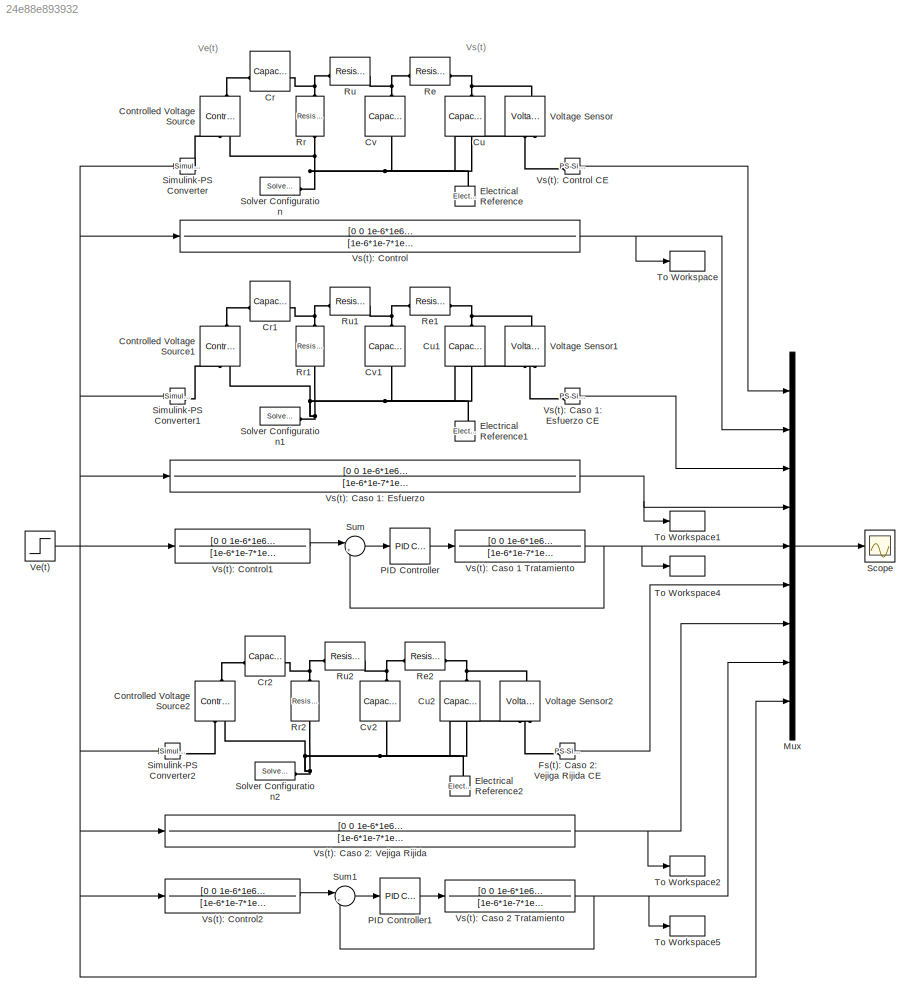
MODEL slx_24e88e893932
KIND model
CONFIG AbsTol = auto
CONFIG EnableMultiTasking = off
CONFIG FixedStep = auto
CONFIG MaxStep = 1e-3
CONFIG MinStep = auto
CONFIG RelTol = 1e-6
CONFIG SampleTimeConstraint = Unconstrained
CONFIG SolverName = ode23tb
CONFIG StartTime = 0.0
CONFIG StopTime = 10.0
BLOCK [Reference] Controlled Voltage Source  REF=fl_lib/Electrical/Electrical Sources/Controlled Voltage
Source
  NameLocation = right
  SourceBlock = fl_lib/Electrical/Electrical Sources/Controlled Voltage\nSource
  SourceType = Controlled Voltage\nSource
BLOCK [Reference] Controlled Voltage Source1  REF=fl_lib/Electrical/Electrical Sources/Controlled Voltage
Source
  NameLocation = right
  SourceBlock = fl_lib/Electrical/Electrical Sources/Controlled Voltage\nSource
  SourceType = Controlled Voltage\nSource
BLOCK [Reference] Controlled Voltage Source2  REF=fl_lib/Electrical/Electrical Sources/Controlled Voltage
Source
  NameLocation = right
  SourceBlock = fl_lib/Electrical/Electrical Sources/Controlled Voltage\nSource
  SourceType = Controlled Voltage\nSource
BLOCK [Reference] Cr  REF=fl_lib/Electrical/Electrical Elements/Capacitor
  NameLocation = top
  SourceBlock = fl_lib/Electrical/Electrical Elements/Capacitor
  SourceType = Capacitor
BLOCK [Reference] Cr1  REF=fl_lib/Electrical/Electrical Elements/Capacitor
  NameLocation = top
  SourceBlock = fl_lib/Electrical/Electrical Elements/Capacitor
  SourceType = Capacitor
BLOCK [Reference] Cr2  REF=fl_lib/Electrical/Electrical Elements/Capacitor
  NameLocation = top
  SourceBlock = fl_lib/Electrical/Electrical Elements/Capacitor
  SourceType = Capacitor
BLOCK [Reference] Cu  REF=fl_lib/Electrical/Electrical Elements/Capacitor
  NameLocation = left
  SourceBlock = fl_lib/Electrical/Electrical Elements/Capacitor
  SourceType = Capacitor
BLOCK [Reference] Cu1  REF=fl_lib/Electrical/Electrical Elements/Capacitor
  NameLocation = left
  SourceBlock = fl_lib/Electrical/Electrical Elements/Capacitor
  SourceType = Capacitor
BLOCK [Reference] Cu2  REF=fl_lib/Electrical/Electrical Elements/Capacitor
  NameLocation = left
  SourceBlock = fl_lib/Electrical/Electrical Elements/Capacitor
  SourceType = Capacitor
BLOCK [Reference] Cv  REF=fl_lib/Electrical/Electrical Elements/Capacitor
  NameLocation = left
  SourceBlock = fl_lib/Electrical/Electrical Elements/Capacitor
  SourceType = Capacitor
BLOCK [Reference] Cv1  REF=fl_lib/Electrical/Electrical Elements/Capacitor
  NameLocation = left
  SourceBlock = fl_lib/Electrical/Electrical Elements/Capacitor
  SourceType = Capacitor
BLOCK [Reference] Cv2  REF=fl_lib/Electrical/Electrical Elements/Capacitor
  NameLocation = left
  SourceBlock = fl_lib/Electrical/Electrical Elements/Capacitor
  SourceType = Capacitor
BLOCK [Reference] Electrical Reference  REF=fl_lib/Electrical/Electrical Elements/Electrical Reference
  NameLocation = right
  SourceBlock = fl_lib/Electrical/Electrical Elements/Electrical Reference
  SourceType = Electrical Reference
BLOCK [Reference] Electrical Reference1  REF=fl_lib/Electrical/Electrical Elements/Electrical Reference
  NameLocation = right
  SourceBlock = fl_lib/Electrical/Electrical Elements/Electrical Reference
  SourceType = Electrical Reference
BLOCK [Reference] Electrical Reference2  REF=fl_lib/Electrical/Electrical Elements/Electrical Reference
  NameLocation = right
  SourceBlock = fl_lib/Electrical/Electrical Elements/Electrical Reference
  SourceType = Electrical Reference
BLOCK [Reference] Fs(t): Caso 2: Vejiga Rijida CE  REF=nesl_utility/PS-Simulink
Converter
  SourceBlock = nesl_utility/PS-Simulink\nConverter
  SourceType = PS-Simulink\nConverter
BLOCK [Mux] Mux
  DisplayOption = bar
  Inputs = 9
BLOCK [Reference] PID Controller  REF=slpidlib/PID Controller
  LibrarySourceBlock = simulink/Continuous/PID Controller
  SourceBlock = slpidlib/PID Controller
  SourceType = PID 1dof
BLOCK [Reference] PID Controller1  REF=slpidlib/PID Controller
  LibrarySourceBlock = simulink/Continuous/PID Controller
  SourceBlock = slpidlib/PID Controller
  SourceType = PID 1dof
BLOCK [Reference] Re  REF=fl_lib/Electrical/Electrical Elements/Resistor
  NameLocation = top
  SourceBlock = fl_lib/Electrical/Electrical Elements/Resistor
  SourceType = Resistor
BLOCK [Reference] Re1  REF=fl_lib/Electrical/Electrical Elements/Resistor
  NameLocation = top
  SourceBlock = fl_lib/Electrical/Electrical Elements/Resistor
  SourceType = Resistor
BLOCK [Reference] Re2  REF=fl_lib/Electrical/Electrical Elements/Resistor
  NameLocation = top
  SourceBlock = fl_lib/Electrical/Electrical Elements/Resistor
  SourceType = Resistor
BLOCK [Reference] Rr  REF=fl_lib/Electrical/Electrical Elements/Resistor
  NameLocation = left
  SourceBlock = fl_lib/Electrical/Electrical Elements/Resistor
  SourceType = Resistor
BLOCK [Reference] Rr1  REF=fl_lib/Electrical/Electrical Elements/Resistor
  NameLocation = left
  SourceBlock = fl_lib/Electrical/Electrical Elements/Resistor
  SourceType = Resistor
BLOCK [Reference] Rr2  REF=fl_lib/Electrical/Electrical Elements/Resistor
  NameLocation = left
  SourceBlock = fl_lib/Electrical/Electrical Elements/Resistor
  SourceType = Resistor
BLOCK [Reference] Ru  REF=fl_lib/Electrical/Electrical Elements/Resistor
  NameLocation = top
  SourceBlock = fl_lib/Electrical/Electrical Elements/Resistor
  SourceType = Resistor
BLOCK [Reference] Ru1  REF=fl_lib/Electrical/Electrical Elements/Resistor
  NameLocation = top
  SourceBlock = fl_lib/Electrical/Electrical Elements/Resistor
  SourceType = Resistor
BLOCK [Reference] Ru2  REF=fl_lib/Electrical/Electrical Elements/Resistor
  NameLocation = top
  SourceBlock = fl_lib/Electrical/Electrical Elements/Resistor
  SourceType = Resistor
BLOCK [Scope] Scope
  Floating = off
  NumInputPorts = 1
  ScopeSpecificationString = Simulink.scopes.TimeScopeBlockCfg('CurrentConfiguration', extmgr.ConfigurationSet(extmgr.Configuration('Core','General UI',true,'FigureColor',[1 1 1]),extmgr.Configuration('Core','Source UI',true),extmgr.Configuration('Sources','WiredSimulink',true),extmgr.Configuration('Visuals','Time Domain',true,'SerializedDisplays',{struct('MinYLimReal','-0.14248','MaxYLimReal','1.12694','YLabelReal','','MinYL...<+2804ch>
BLOCK [Reference] Simulink-PS Converter  REF=nesl_utility/Simulink-PS
Converter
  SourceBlock = nesl_utility/Simulink-PS\nConverter
  SourceType = Simulink-PS\nConverter
BLOCK [Reference] Simulink-PS Converter1  REF=nesl_utility/Simulink-PS
Converter
  SourceBlock = nesl_utility/Simulink-PS\nConverter
  SourceType = Simulink-PS\nConverter
BLOCK [Reference] Simulink-PS Converter2  REF=nesl_utility/Simulink-PS
Converter
  SourceBlock = nesl_utility/Simulink-PS\nConverter
  SourceType = Simulink-PS\nConverter
BLOCK [Reference] Solver Configuration  REF=nesl_utility/Solver
Configuration
  SourceBlock = nesl_utility/Solver\nConfiguration
  SourceType = Solver\nConfiguration
BLOCK [Reference] Solver Configuration1  REF=nesl_utility/Solver
Configuration
  SourceBlock = nesl_utility/Solver\nConfiguration
  SourceType = Solver\nConfiguration
BLOCK [Reference] Solver Configuration2  REF=nesl_utility/Solver
Configuration
  SourceBlock = nesl_utility/Solver\nConfiguration
  SourceType = Solver\nConfiguration
BLOCK [Sum] Sum
  Inputs = |+-
BLOCK [Sum] Sum1
  Inputs = |+-
BLOCK [ToWorkspace] To Workspace
  FixptAsFi = on
  MaxDataPoints = inf
  SampleTime = -1
  VariableName = Vs1
BLOCK [ToWorkspace] To Workspace1
  FixptAsFi = on
  MaxDataPoints = inf
  SampleTime = -1
  VariableName = Vs2
BLOCK [ToWorkspace] To Workspace2
  FixptAsFi = on
  MaxDataPoints = inf
  SampleTime = -1
  VariableName = Vs3
BLOCK [ToWorkspace] To Workspace4
  FixptAsFi = on
  MaxDataPoints = inf
  SampleTime = -1
  VariableName = Vs4
BLOCK [ToWorkspace] To Workspace5
  FixptAsFi = on
  MaxDataPoints = inf
  SampleTime = -1
  VariableName = Vs5
BLOCK [Step] Ve(t)
  SampleTime = 0
BLOCK [Reference] Voltage Sensor  REF=fl_lib/Electrical/Electrical Sensors/Voltage Sensor
  NameLocation = right
  SourceBlock = fl_lib/Electrical/Electrical Sensors/Voltage Sensor
  SourceType = Voltage Sensor
BLOCK [Reference] Voltage Sensor1  REF=fl_lib/Electrical/Electrical Sensors/Voltage Sensor
  NameLocation = right
  SourceBlock = fl_lib/Electrical/Electrical Sensors/Voltage Sensor
  SourceType = Voltage Sensor
BLOCK [Reference] Voltage Sensor2  REF=fl_lib/Electrical/Electrical Sensors/Voltage Sensor
  NameLocation = right
  SourceBlock = fl_lib/Electrical/Electrical Sensors/Voltage Sensor
  SourceType = Voltage Sensor
BLOCK [TransferFcn] Vs(t): Caso 1 Tratamiento
  Denominator = [1e-6*1e-7*1e-6*1e5*1e6*1e3  1e-6*1e-7*1e5*1e6+1e-6*1e-7*1e6*1e3+1e-6*1e-6*1e6*1e3+1e-7*1e-6*1e5*1e6+1e-7*1e-6*1e5*1e3  1e-6*1e6+1e-7*1e5+1e-7*1e6+1e-7*1e3+1e-6*1e6+1e-6*1e3  1]
  Numerator = [0 0 1e-6*1e6 0]
BLOCK [TransferFcn] Vs(t): Caso 1: Esfuerzo
  Denominator = [1e-6*1e-7*1e-6*1e5*1e6*1e3  1e-6*1e-7*1e5*1e6+1e-6*1e-7*1e6*1e3+1e-6*1e-6*1e6*1e3+1e-7*1e-6*1e5*1e6+1e-7*1e-6*1e5*1e3  1e-6*1e6+1e-7*1e5+1e-7*1e6+1e-7*1e3+1e-6*1e6+1e-6*1e3  1]
  Numerator = [0 0 1e-6*1e6 0]
BLOCK [Reference] Vs(t): Caso 1: Esfuerzo CE  REF=nesl_utility/PS-Simulink
Converter
  SourceBlock = nesl_utility/PS-Simulink\nConverter
  SourceType = PS-Simulink\nConverter
BLOCK [TransferFcn] Vs(t): Caso 2 Tratamiento
  Denominator = [1e-6*1e-7*1e-6*1e5*1e6*1e3  1e-6*1e-7*1e5*1e6+1e-6*1e-7*1e6*1e3+1e-6*1e-6*1e6*1e3+1e-7*1e-6*1e5*1e6+1e-7*1e-6*1e5*1e3  1e-6*1e6+1e-7*1e5+1e-7*1e6+1e-7*1e3+1e-6*1e6+1e-6*1e3  1]
  Numerator = [0 0 1e-6*1e6 0]
BLOCK [TransferFcn] Vs(t): Caso 2: Vejiga Rijida
  Denominator = [1e-6*1e-7*1e-7*1e6*1e6*1e3  1e-6*1e-7*1e6*1e6+1e-6*1e-7*1e6*1e3+1e-6*1e-7*1e6*1e3+1e-7*1e-7*1e6*1e6+1e-7*1e-7*1e6*1e3  1e-6*1e6+1e-7*1e6+1e-7*1e6+1e-7*1e3+1e-7*1e6+1e-7*1e3  1]
  Numerator = [0 0 1e-6*1e6 0]
BLOCK [TransferFcn] Vs(t): Control
  Denominator = [1e-6*1e-7*1e-6*1e6*1e6*1e3  1e-6*1e-7*1e6*1e6+1e-6*1e-7*1e6*1e3+1e-6*1e-6*1e6*1e3+1e-7*1e-6*1e6*1e6+1e-7*1e-6*1e6*1e3  1e-6*1e6+1e-7*1e6+1e-7*1e6+1e-7*1e3+1e-6*1e6+1e-6*1e3  1]
  Numerator = [0 0 1e-6*1e6 0]
BLOCK [Reference] Vs(t): Control CE  REF=nesl_utility/PS-Simulink
Converter
  SourceBlock = nesl_utility/PS-Simulink\nConverter
  SourceType = PS-Simulink\nConverter
BLOCK [TransferFcn] Vs(t): Control1
  Denominator = [1e-6*1e-7*1e-6*1e6*1e6*1e3  1e-6*1e-7*1e6*1e6+1e-6*1e-7*1e6*1e3+1e-6*1e-6*1e6*1e3+1e-7*1e-6*1e6*1e6+1e-7*1e-6*1e6*1e3  1e-6*1e6+1e-7*1e6+1e-7*1e6+1e-7*1e3+1e-6*1e6+1e-6*1e3  1]
  Numerator = [0 0 1e-6*1e6 0]
BLOCK [TransferFcn] Vs(t): Control2
  Denominator = [1e-6*1e-7*1e-6*1e6*1e6*1e3  1e-6*1e-7*1e6*1e6+1e-6*1e-7*1e6*1e3+1e-6*1e-6*1e6*1e3+1e-7*1e-6*1e6*1e6+1e-7*1e-6*1e6*1e3  1e-6*1e6+1e-7*1e6+1e-7*1e6+1e-7*1e3+1e-6*1e6+1e-6*1e3  1]
  Numerator = [0 0 1e-6*1e6 0]
ANNOTATION (root): Ve(t)
ANNOTATION (root): Vs(t)
LINE Fs(t): Caso 2: Vejiga Rijida CE:1 -> Mux:6
LINE Mux:1 -> Scope:1
LINE PID Controller1:1 -> Vs(t): Caso 2 Tratamiento:1
LINE PID Controller:1 -> Vs(t): Caso 1 Tratamiento:1
LINE Sum1:1 -> PID Controller1:1
LINE Sum:1 -> PID Controller:1
NET Ve(t):1 -> Mux:9, Simulink-PS Converter1:1, Simulink-PS Converter2:1, Simulink-PS Converter:1, Vs(t): Caso 1: Esfuerzo:1, Vs(t): Caso 2: Vejiga Rijida:1, Vs(t): Control1:1, Vs(t): Control2:1, Vs(t): Control:1
NET Vs(t): Caso 1 Tratamiento:1 -> Mux:5, Sum:2, To Workspace4:1
LINE Vs(t): Caso 1: Esfuerzo CE:1 -> Mux:3
NET Vs(t): Caso 1: Esfuerzo:1 -> Mux:4, To Workspace1:1
NET Vs(t): Caso 2 Tratamiento:1 -> Mux:8, Sum1:2, To Workspace5:1
NET Vs(t): Caso 2: Vejiga Rijida:1 -> Mux:7, To Workspace2:1
LINE Vs(t): Control CE:1 -> Mux:1
LINE Vs(t): Control1:1 -> Sum:1
LINE Vs(t): Control2:1 -> Sum1:1
NET Vs(t): Control:1 -> Mux:2, To Workspace:1
PLINE Controlled Voltage Source1:LConn1 -- Cr1:LConn1
PLINE Controlled Voltage Source1:RConn1 -- Simulink-PS Converter1:RConn1
PNET net1: Controlled Voltage Source1:RConn2 -- Cu1:RConn1 -- Cv1:RConn1 -- Electrical Reference1:LConn1 -- Rr1:RConn1 -- Solver Configuration1:RConn1 -- Voltage Sensor1:RConn2
PLINE Controlled Voltage Source2:LConn1 -- Cr2:LConn1
PLINE Controlled Voltage Source2:RConn1 -- Simulink-PS Converter2:RConn1
PNET net2: Controlled Voltage Source2:RConn2 -- Cu2:RConn1 -- Cv2:RConn1 -- Electrical Reference2:LConn1 -- Rr2:RConn1 -- Solver Configuration2:RConn1 -- Voltage Sensor2:RConn2
PLINE Controlled Voltage Source:LConn1 -- Cr:LConn1
PLINE Controlled Voltage Source:RConn1 -- Simulink-PS Converter:RConn1
PNET net3: Controlled Voltage Source:RConn2 -- Cu:RConn1 -- Cv:RConn1 -- Electrical Reference:LConn1 -- Rr:RConn1 -- Solver Configuration:RConn1 -- Voltage Sensor:RConn2
PNET net4: Cr1:RConn1 -- Rr1:LConn1 -- Ru1:LConn1
PNET net5: Cr2:RConn1 -- Rr2:LConn1 -- Ru2:LConn1
PNET net6: Cr:RConn1 -- Rr:LConn1 -- Ru:LConn1
PNET net7: Cu1:LConn1 -- Re1:RConn1 -- Voltage Sensor1:LConn1
PNET net8: Cu2:LConn1 -- Re2:RConn1 -- Voltage Sensor2:LConn1
PNET net9: Cu:LConn1 -- Re:RConn1 -- Voltage Sensor:LConn1
PNET net10: Cv1:LConn1 -- Re1:LConn1 -- Ru1:RConn1
PNET net11: Cv2:LConn1 -- Re2:LConn1 -- Ru2:RConn1
PNET net12: Cv:LConn1 -- Re:LConn1 -- Ru:RConn1
PLINE Fs(t): Caso 2: Vejiga Rijida CE:LConn1 -- Voltage Sensor2:RConn1
PLINE Voltage Sensor1:RConn1 -- Vs(t): Caso 1: Esfuerzo CE:LConn1
PLINE Voltage Sensor:RConn1 -- Vs(t): Control CE:LConn1
note: NET lines group one-source signal fan-out (src -> all destinations, sorted); 1:1 wires keep LINE; PNET lines group multi-terminal physical nets as a canonical sorted terminal list (undirected conserving connections); 2-terminal nets keep the pairwise PLINE form
